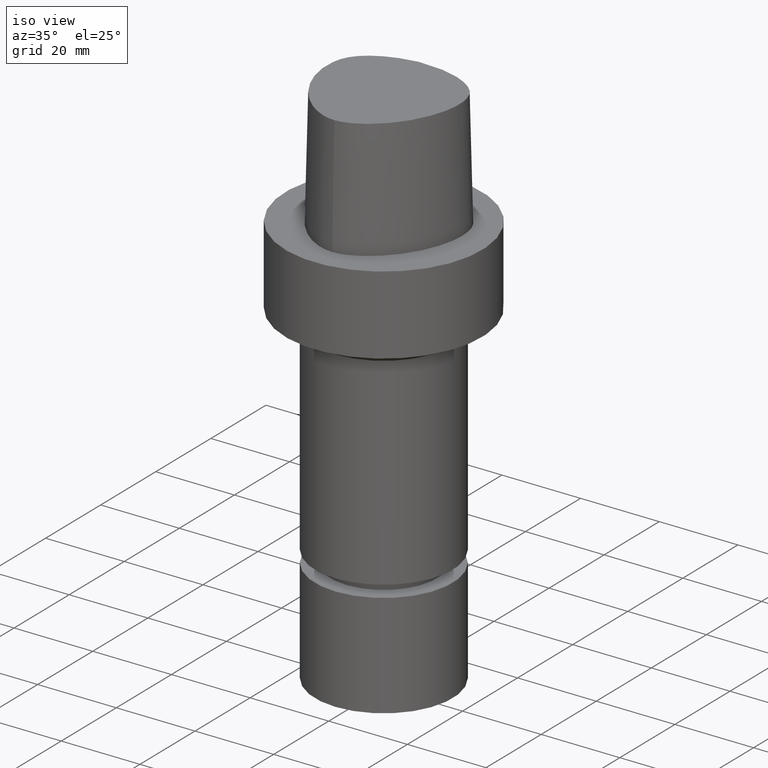
[diagram: clean part render]
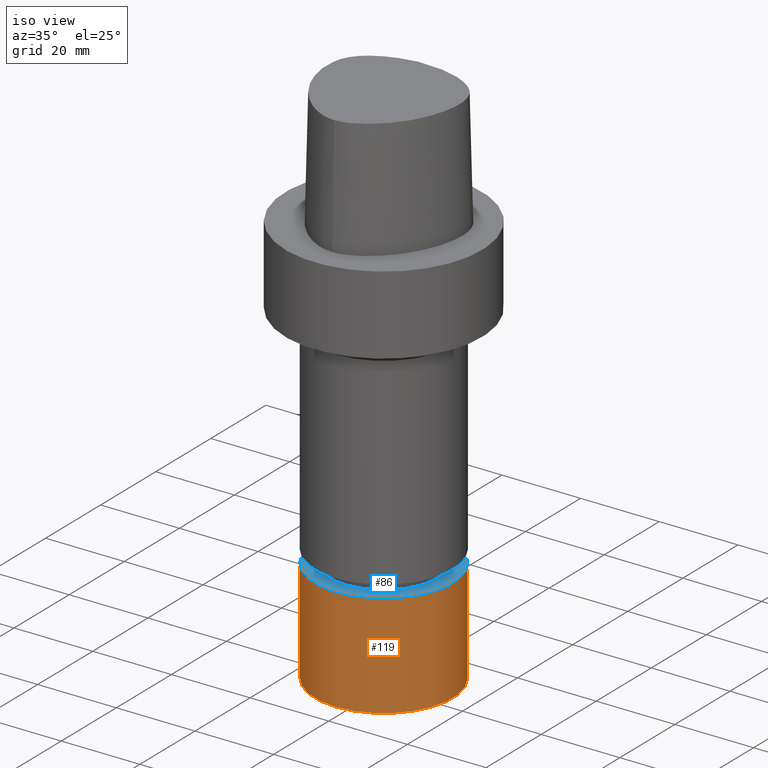
[diagram: same view with the hole feature highlighted: cylindrical wall and planar end face, labeled with their STEP entity ids]
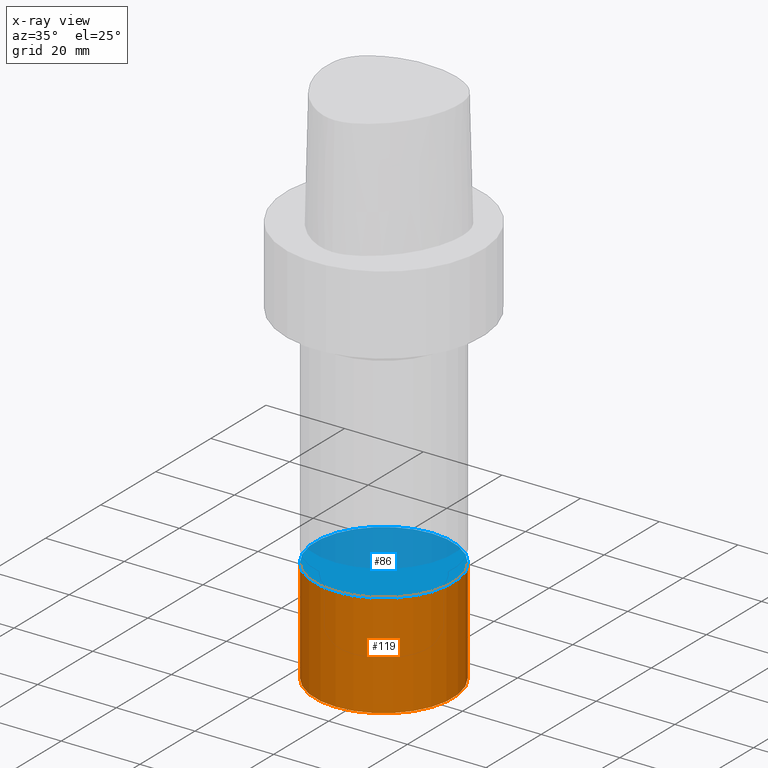
[diagram: x-ray of the same camera — body ghosted, the hole faces saturated]
A machine part, iso view. The highlighted faces form one hole feature of diameter 35 mm: the cylindrical wall (entity #119, orange) and its adjacent planar end face (entity #86, blue) — they share a circular edge in the B-rep.
The next image is the same camera in x-ray (body ghosted, the hole faces saturated) — the bore reads through the body.
Wall:
#92=EDGE_CURVE('Unnamed[1]',#208,#208,#209,.T.);
#119=ADVANCED_FACE('Unnamed[1]',(#250,#251),#252,.T.);
#138=EDGE_CURVE('Unnamed[1]',#277,#277,#278,.T.);
#208=VERTEX_POINT('',#882);
#209=CIRCLE('',#883,17.5);
#250=FACE_BOUND('',#937,.T.);
#251=FACE_BOUND('',#938,.T.);
#252=CYLINDRICAL_SURFACE('',#939,17.5);
#277=VERTEX_POINT('',#970);
#278=CIRCLE('',#971,17.5);
#882=CARTESIAN_POINT('',(6.4293956955236E-015,17.5,-105.0));
#883=AXIS2_PLACEMENT_3D('',#1027,#1028,#1029);
#937=EDGE_LOOP('',(#1073));
#938=EDGE_LOOP('',(#1074));
#939=AXIS2_PLACEMENT_3D('',#1075,#1076,#1077);
#970=CARTESIAN_POINT('',(4.80673962098472E-015,17.5,-78.5000152587891));
#971=AXIS2_PLACEMENT_3D('',#1103,#1104,#1105);
#1027=CARTESIAN_POINT('',(6.4293956955236E-015,1.28587913910472E-014,-105.0));
#1028=DIRECTION('',(6.12323399573677E-017,1.22464679914735E-016,-1.0));
#1029=DIRECTION('',(-1.23259516440783E-032,1.0,1.22464679914735E-016));
#1073=ORIENTED_EDGE('',*,*,#92,.F.);
#1074=ORIENTED_EDGE('',*,*,#138,.T.);
#1075=CARTESIAN_POINT('',(5.61806765825416E-015,1.12361353165083E-014,-91.7500076293945));
#1076=DIRECTION('',(6.12323399573677E-017,1.22464679914735E-016,-1.0));
#1077=DIRECTION('',(-1.23259516440783E-032,1.0,1.22464679914735E-016));
#1103=CARTESIAN_POINT('',(4.80673962098472E-015,9.61347924196944E-015,-78.5000152587891));
#1104=DIRECTION('',(6.12323399573677E-017,1.22464679914735E-016,-1.0));
#1105=DIRECTION('',(-1.23259516440783E-032,1.0,1.22464679914735E-016));
End face:
#86=ADVANCED_FACE('Unnamed[1]',(#199),#200,.T.);
#138=EDGE_CURVE('Unnamed[1]',#277,#277,#278,.T.);
#199=FACE_OUTER_BOUND('',#870,.T.);
#200=PLANE('',#871);
#277=VERTEX_POINT('',#970);
#278=CIRCLE('',#971,17.5);
#870=EDGE_LOOP('',(#1017));
#871=AXIS2_PLACEMENT_3D('',#1018,#1019,#1020);
#970=CARTESIAN_POINT('',(4.80673962098472E-015,17.5,-78.5000152587891));
#971=AXIS2_PLACEMENT_3D('',#1103,#1104,#1105);
#1017=ORIENTED_EDGE('',*,*,#138,.F.);
#1018=CARTESIAN_POINT('',(4.80673962098472E-015,8.75000000000001,-78.5000152587891));
#1019=DIRECTION('',(-6.12323399573677E-017,-1.22464679914735E-016,1.0));
#1020=DIRECTION('',(1.23259516440783E-032,-1.0,-1.22464679914735E-016));
#1103=CARTESIAN_POINT('',(4.80673962098472E-015,9.61347924196944E-015,-78.5000152587891));
#1104=DIRECTION('',(6.12323399573677E-017,1.22464679914735E-016,-1.0));
#1105=DIRECTION('',(-1.23259516440783E-032,1.0,1.22464679914735E-016));